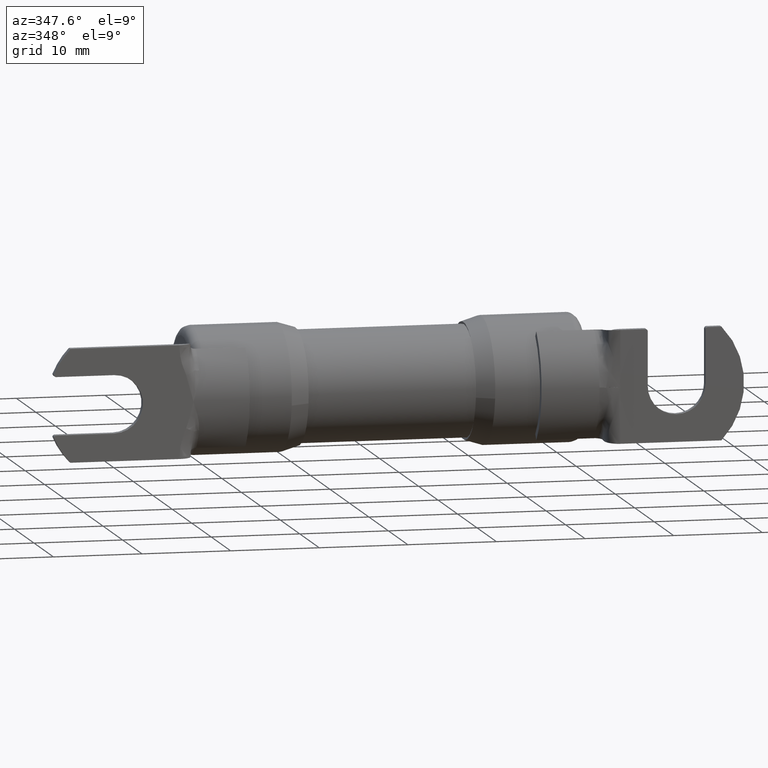
[diagram: clean part render]
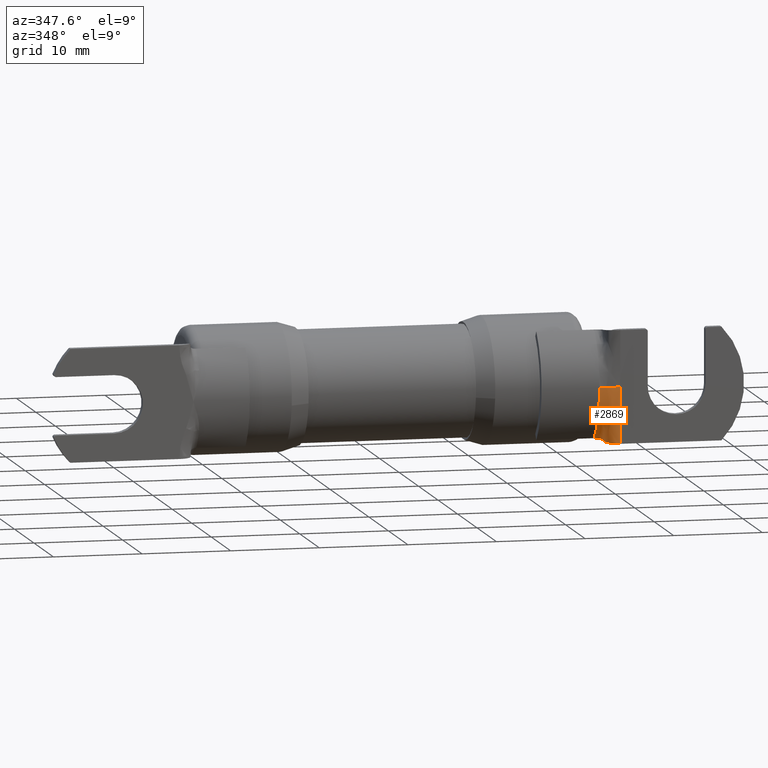
[diagram: same view with one face highlighted and labeled with its STEP entity id]
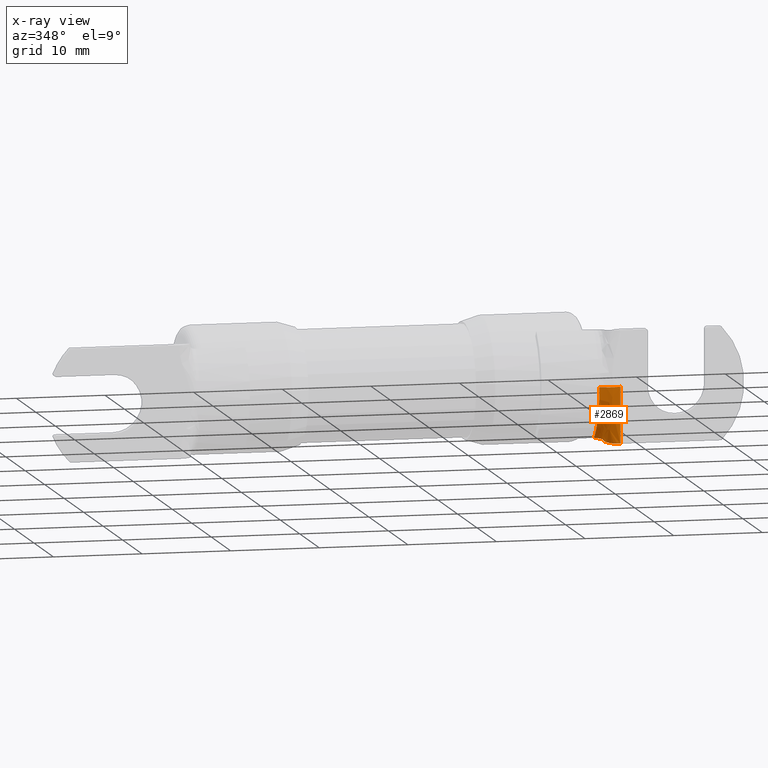
[diagram: x-ray of the same camera — body ghosted, the highlighted face saturated]
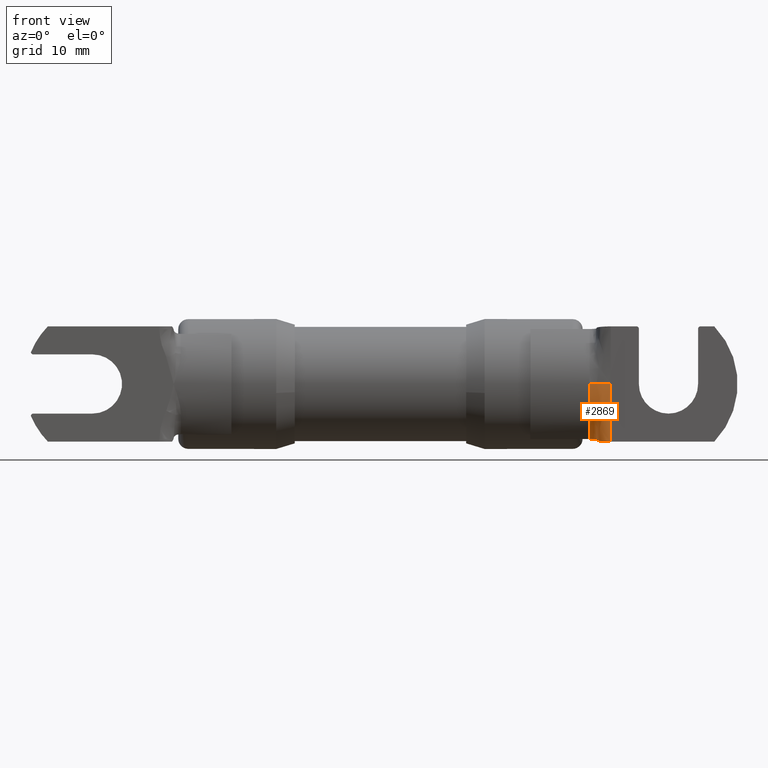
[diagram: same view with one face highlighted and labeled with its STEP entity id]
A machine part, auxiliary view. The second image highlights one B-rep face of the part: STEP entity #2869.
The next image is the same camera in x-ray: the body ghosted, the highlighted face saturated — about 0% of this face is hidden behind the body in this view.
A second angle (front view) of the same face is appended — the face is thin or edge-on in the first view.
In plain terms, the highlighted face is a freeform B-spline surface patch.
Its self-contained STEP definition (entity closure, byte-faithful):
#7 = CARTESIAN_POINT ( 'NONE',  ( 0.9172174191870646800, -0.3175282735970209000, 0.0001232263123424863100 ) ) ;
#21 = CARTESIAN_POINT ( 'NONE',  ( 0.9999999999999993300, -0.3187000000000004300, -0.06266666666666714800 ) ) ;
#143 = CARTESIAN_POINT ( 'NONE',  ( 0.9069999999999989200, -0.3186999999999992100, -0.04496244496935689100 ) ) ;
#154 = CARTESIAN_POINT ( 'NONE',  ( 0.9219994977633018100, -0.2561526967413070300, -0.1892375983644107000 ) ) ;
#242 = B_SPLINE_CURVE_WITH_KNOTS ( 'NONE', 3,
 ( #4996, #1693, #1263, #5308 ),
 .UNSPECIFIED., .F., .F.,
 ( 4, 4 ),
 ( 0.3325621450292392000, 0.3351660511316407200 ),
 .UNSPECIFIED. ) ;
#244 = EDGE_CURVE ( 'NONE', #600, #4332, #4473, .T. ) ;
#260 = CARTESIAN_POINT ( 'NONE',  ( 0.9929296308347413900, -0.3195108249331927700, -8.527158406571856400E-005 ) ) ;
#269 = CARTESIAN_POINT ( 'NONE',  ( 0.9069999999999999200, -0.3186996071294472300, 0.0005000000010222032700 ) ) ;
#303 = B_SPLINE_CURVE_WITH_KNOTS ( 'NONE', 3,
 ( #1023, #2527, #3415, #2507, #3170, #925, #520, #2322, #1487, #3724 ),
 .UNSPECIFIED., .F., .F.,
 ( 4, 1, 1, 1, 1, 2, 4 ),
 ( 0.0000000000000000000, 0.2109819828350518200, 0.3164729742525777500, 0.3650122903706611300, 0.6117488781960334100, 0.6951090799987604800, 1.000000000000000000 ),
 .UNSPECIFIED. ) ;
#318 = CARTESIAN_POINT ( 'NONE',  ( 0.9230621818913536900, -0.2271162442251738700, -0.2232778174709922600 ) ) ;
#355 = CARTESIAN_POINT ( 'NONE',  ( 0.9177487612510911700, -0.3167152845879476800, -0.02210502134608296300 ) ) ;
#375 = CARTESIAN_POINT ( 'NONE',  ( 0.9999999999999990000, -0.3187000000000009800, -0.1250000000000005800 ) ) ;
#396 = CARTESIAN_POINT ( 'NONE',  ( 0.9896204722016034300, -0.3203421691401724900, -0.1883236638979441400 ) ) ;
#450 = ORIENTED_EDGE ( 'NONE', *, *, #1025, .F. ) ;
#477 = CARTESIAN_POINT ( 'NONE',  ( 0.9999999999999992200, -0.3187000000000007600, -0.0005000000000005539300 ) ) ;
#520 = CARTESIAN_POINT ( 'NONE',  ( 0.9379333398869584800, -0.2469507755815275000, -0.2424543883998215000 ) ) ;
#600 = VERTEX_POINT ( 'NONE', #4408 ) ;
#618 = CARTESIAN_POINT ( 'NONE',  ( 0.9380679863516823100, -0.3187099624039591000, -0.0003335610429723995200 ) ) ;
#705 = CARTESIAN_POINT ( 'NONE',  ( 0.9999999999999992200, -0.3187000000000007600, -0.0005000000000005539300 ) ) ;
#760 = CARTESIAN_POINT ( 'NONE',  ( 0.9069999999999999200, -0.2280144494113630100, -0.2237956796171918500 ) ) ;
#797 = CARTESIAN_POINT ( 'NONE',  ( 0.9726987992572137000, -0.3158992790590513500, -0.2296045998632494100 ) ) ;
#816 = CARTESIAN_POINT ( 'NONE',  ( 0.9999999999999993300, -0.3187000000000004300, -0.06250000000000048600 ) ) ;
#831 = B_SPLINE_SURFACE_WITH_KNOTS ( 'NONE', 3, 3, ( 
 ( #3545, #4037, #1365, #4469, #1810, #4907, #2261, #5347, #7, #2213 ),
 ( #1252, #4367, #1695, #2156, #5224, #2609, #5676, #3051, #355, #3488 ),
 ( #816, #3943, #1269, #4385, #1717, #4819, #2175, #5243, #5696, #3074 ),
 ( #375, #3505, #834, #3964, #4402, #1731, #4833, #5265, #2648, #5711 ),
 ( #3090, #396, #3519, #3985, #1309, #3318, #5509, #1074, #154, #1506 ),
 ( #1747, #4853, #797, #3417, #2296, #1171, #5659, #3467, #318, #760 ),
 ( #3432, #2992, #2101, #4742, #1638, #4316, #4295, #1618, #4725, #2078 ) ),
 .UNSPECIFIED., .F., .F., .F.,
 ( 4, 1, 1, 1, 4 ),
 ( 4, 1, 1, 1, 1, 2, 4 ),
 ( 0.1072263801249413900, 0.3304197850937060100, 0.5536131900624707800, 0.7768065950312352800, 1.000000000000000000 ),
 ( 0.0000000000000000000, 0.2109819828350518200, 0.3164729742525777500, 0.3650122903706611300, 0.6117488781960334100, 0.6951090799987604800, 1.000000000000000000 ),
 .UNSPECIFIED. ) ;
#834 = CARTESIAN_POINT ( 'NONE',  ( 0.9770995188731386200, -0.3219997900588439400, -0.1270358214549841800 ) ) ;
#858 = CARTESIAN_POINT ( 'NONE',  ( 0.9272249501088322100, -0.3179393548543308400, -0.0005000000000005429800 ) ) ;
#925 = CARTESIAN_POINT ( 'NONE',  ( 0.9369626189624346000, -0.2648803788058666200, -0.2443399812152522700 ) ) ;
#1023 = CARTESIAN_POINT ( 'NONE',  ( 0.9999999999999992200, -0.3187000000000005900, -0.2500000000000005600 ) ) ;
#1025 = EDGE_CURVE ( 'NONE', #5738, #4568, #1042, .T. ) ;
#1042 = B_SPLINE_CURVE_WITH_KNOTS ( 'NONE', 3,
 ( #3835, #1543, #2000, #5144, #143, #2039 ),
 .UNSPECIFIED., .F., .F.,
 ( 4, 2, 4 ),
 ( 0.0000000000000000000, 0.2500000000000000600, 0.5000000000000000000 ),
 .UNSPECIFIED. ) ;
#1074 = CARTESIAN_POINT ( 'NONE',  ( 0.9354784500366586400, -0.2652463165944253200, -0.1892532331583446900 ) ) ;
#1171 = CARTESIAN_POINT ( 'NONE',  ( 0.9377965739282163600, -0.2738097510653664200, -0.2267674394250580600 ) ) ;
#1243 = FACE_OUTER_BOUND ( 'NONE', #1947, .T. ) ;
#1252 = CARTESIAN_POINT ( 'NONE',  ( 0.9999999999999992200, -0.3187000000000007600, -0.02083333333333387700 ) ) ;
#1263 = CARTESIAN_POINT ( 'NONE',  ( 0.9380684330196179500, -0.3187099943338371200, -0.0005000000000005463400 ) ) ;
#1269 = CARTESIAN_POINT ( 'NONE',  ( 0.9797399506426937000, -0.3225526470850581000, -0.06386251194761451100 ) ) ;
#1309 = CARTESIAN_POINT ( 'NONE',  ( 0.9464596582702880000, -0.3024636667454193000, -0.1897826207613647900 ) ) ;
#1319 = CARTESIAN_POINT ( 'NONE',  ( 0.9371636754740838600, -0.3186453194633109300, -0.0005000000000005460100 ) ) ;
#1326 = CARTESIAN_POINT ( 'NONE',  ( 0.9999999999999992200, -0.3187000000000005900, -0.2500000000000005600 ) ) ;
#1365 = CARTESIAN_POINT ( 'NONE',  ( 0.9823803824122486800, -0.3202226040451420200, -0.0001601268702017824200 ) ) ;
#1412 = CARTESIAN_POINT ( 'NONE',  ( 0.9379251353285791300, -0.3186996127903598500, -0.0005000000000005462300 ) ) ;
#1435 = CARTESIAN_POINT ( 'NONE',  ( 0.9580531613709004600, -0.3200394132116808300, -0.0001408613396094962800 ) ) ;
#1458 = CARTESIAN_POINT ( 'NONE',  ( 0.9379380000519901300, -0.3187006705329263300, 1.000436987696159300E-005 ) ) ;
#1487 = CARTESIAN_POINT ( 'NONE',  ( 0.9235935239553801900, -0.2111770093663555800, -0.2386921882154557900 ) ) ;
#1506 = CARTESIAN_POINT ( 'NONE',  ( 0.9069999999999999200, -0.2585258020331269200, -0.1904278784074805200 ) ) ;
#1541 = EDGE_CURVE ( 'NONE', #2265, #5738, #303, .T. ) ;
#1543 = CARTESIAN_POINT ( 'NONE',  ( 0.9069999999999994700, -0.2448518897468147400, -0.2088991707619635400 ) ) ;
#1562 = EDGE_CURVE ( 'NONE', #1878, #600, #242, .T. ) ;
#1618 = CARTESIAN_POINT ( 'NONE',  ( 0.9382296166792673000, -0.2259383736728435600, -0.2402445885744602100 ) ) ;
#1638 = CARTESIAN_POINT ( 'NONE',  ( 0.9425951572367505800, -0.2848406514159664300, -0.2464391323318002900 ) ) ;
#1693 = CARTESIAN_POINT ( 'NONE',  ( 0.9379967791974108700, -0.3187048722439427800, -0.0005000000000005462300 ) ) ;
#1695 = CARTESIAN_POINT ( 'NONE',  ( 0.9815002384890636500, -0.3212790455068367200, -0.02139429147370240000 ) ) ;
#1717 = CARTESIAN_POINT ( 'NONE',  ( 0.9541886603373629400, -0.3207696410298925300, -0.06506490611176866900 ) ) ;
#1731 = CARTESIAN_POINT ( 'NONE',  ( 0.9419663487571250400, -0.3076196423241316400, -0.1291876771961703300 ) ) ;
#1747 = CARTESIAN_POINT ( 'NONE',  ( 0.9999999999999992200, -0.3187000000000005900, -0.2291666666666671800 ) ) ;
#1769 = EDGE_CURVE ( 'NONE', #5465, #5316, #4326, .T. ) ;
#1810 = CARTESIAN_POINT ( 'NONE',  ( 0.9580531613709004600, -0.3200394132116808300, -0.0001408613396094962800 ) ) ;
#1871 = B_SPLINE_CURVE_WITH_KNOTS ( 'NONE', 3,
 ( #1326, #4484, #5359, #2738, #21, #3187, #477 ),
 .UNSPECIFIED., .F., .F.,
 ( 4, 1, 1, 1, 4 ),
 ( 0.0000000000000000000, 0.2500000000000000600, 0.4999999999999998900, 0.7499999999999998900, 0.9980000000000000000 ),
 .UNSPECIFIED. ) ;
#1878 = VERTEX_POINT ( 'NONE', #1412 ) ;
#1947 = EDGE_LOOP ( 'NONE', ( #4920, #2774, #450, #4727, #4575, #2289, #5127, #2042 ) ) ;
#2000 = CARTESIAN_POINT ( 'NONE',  ( 0.9069999999999994700, -0.2721116394795065600, -0.1718911490373987700 ) ) ;
#2013 = CARTESIAN_POINT ( 'NONE',  ( 0.9999999999999992200, -0.3187000000000007600, -5.533951594125567400E-016 ) ) ;
#2021 = EDGE_CURVE ( 'NONE', #5316, #4332, #3322, .T. ) ;
#2039 = CARTESIAN_POINT ( 'NONE',  ( 0.9069999999999999200, -0.3186996071294472300, 0.0005000000010222032700 ) ) ;
#2042 = ORIENTED_EDGE ( 'NONE', *, *, #244, .F. ) ;
#2065 = CARTESIAN_POINT ( 'NONE',  ( 0.9379380000519901300, -0.3187006705329263300, 1.000436987696159300E-005 ) ) ;
#2078 = CARTESIAN_POINT ( 'NONE',  ( 0.9069999999999999200, -0.2111770093663552200, -0.2386921882154560400 ) ) ;
#2101 = CARTESIAN_POINT ( 'NONE',  ( 0.9718186553340285600, -0.3139953901152777700, -0.2495052328550143600 ) ) ;
#2139 = B_SPLINE_CURVE_WITH_KNOTS ( 'NONE', 3,
 ( #4409, #4828, #858, #3989, #1319, #4428 ),
 .UNSPECIFIED., .F., .F.,
 ( 4, 2, 4 ),
 ( 0.0000000000000000000, 0.3048909199964163200, 0.3325621450292392000 ),
 .UNSPECIFIED. ) ;
#2156 = CARTESIAN_POINT ( 'NONE',  ( 0.9694308006597565100, -0.3213900961529666000, -0.02160647018405541600 ) ) ;
#2175 = CARTESIAN_POINT ( 'NONE',  ( 0.9379390218159990900, -0.3155144889602062300, -0.06579860667654741100 ) ) ;
#2213 = CARTESIAN_POINT ( 'NONE',  ( 0.9069999999999999200, -0.3187000000000007000, -5.945770472514089500E-016 ) ) ;
#2261 = CARTESIAN_POINT ( 'NONE',  ( 0.9379390218159989700, -0.3187000000000007000, -5.808767534205454300E-016 ) ) ;
#2265 = VERTEX_POINT ( 'NONE', #3764 ) ;
#2289 = ORIENTED_EDGE ( 'NONE', *, *, #1769, .T. ) ;
#2296 = CARTESIAN_POINT ( 'NONE',  ( 0.9438833242479296400, -0.2911695656073051100, -0.2280672987793276900 ) ) ;
#2322 = CARTESIAN_POINT ( 'NONE',  ( 0.9382296166792673000, -0.2259383736728435600, -0.2402445885744602100 ) ) ;
#2507 = CARTESIAN_POINT ( 'NONE',  ( 0.9563515318694936200, -0.3015244167063773100, -0.2481937047878833300 ) ) ;
#2527 = CARTESIAN_POINT ( 'NONE',  ( 0.9885174193238907000, -0.3187000000000008700, -0.2500000000000006700 ) ) ;
#2609 = CARTESIAN_POINT ( 'NONE',  ( 0.9461361235860337200, -0.3198082480841607500, -0.02186823602953109600 ) ) ;
#2639 = CARTESIAN_POINT ( 'NONE',  ( 0.9706198250952349200, -0.3202881655726779700, -0.0001670217436545763400 ) ) ;
#2648 = CARTESIAN_POINT ( 'NONE',  ( 0.9204054715712227700, -0.2893428712406255800, -0.1305417586211440300 ) ) ;
#2738 = CARTESIAN_POINT ( 'NONE',  ( 0.9999999999999990000, -0.3187000000000009800, -0.1250000000000005800 ) ) ;
#2774 = ORIENTED_EDGE ( 'NONE', *, *, #4684, .F. ) ;
#2806 = CARTESIAN_POINT ( 'NONE',  ( 0.9394588267933566800, -0.3188093838611166200, -1.150351293745549400E-005 ) ) ;
#2869 = ADVANCED_FACE ( 'NONE', ( #1243 ), #831, .F. ) ;
#2876 = CARTESIAN_POINT ( 'NONE',  ( 0.9379967069683725600, -0.3187048670809523000, -0.0001667685227552230100 ) ) ;
#2976 = CARTESIAN_POINT ( 'NONE',  ( 0.9823803824122486800, -0.3202226040451420200, -0.0001601268702017824200 ) ) ;
#2992 = CARTESIAN_POINT ( 'NONE',  ( 0.9885174193238907000, -0.3187000000000008700, -0.2500000000000006700 ) ) ;
#3051 = CARTESIAN_POINT ( 'NONE',  ( 0.9281420056563685100, -0.3174115898900342100, -0.02201077384638804000 ) ) ;
#3074 = CARTESIAN_POINT ( 'NONE',  ( 0.9069999999999999200, -0.3139264283391973700, -0.06744304843229143000 ) ) ;
#3090 = CARTESIAN_POINT ( 'NONE',  ( 0.9999999999999993300, -0.3187000000000007000, -0.1875000000000005300 ) ) ;
#3170 = CARTESIAN_POINT ( 'NONE',  ( 0.9425951572367505800, -0.2848406514159664300, -0.2464391323318002900 ) ) ;
#3187 = CARTESIAN_POINT ( 'NONE',  ( 0.9999999999999992200, -0.3187000000000007600, -0.02116666666666721200 ) ) ;
#3318 = CARTESIAN_POINT ( 'NONE',  ( 0.9394644838597798800, -0.2899054930994693400, -0.1896301641657736600 ) ) ;
#3322 = B_SPLINE_CURVE_WITH_KNOTS ( 'NONE', 3,
 ( #2013, #260, #2976, #2639, #1435, #5236, #2806, #2065 ),
 .UNSPECIFIED., .F., .F.,
 ( 4, 1, 1, 1, 1, 4 ),
 ( 0.0000000000000000000, 0.2109819828350517900, 0.3164729742525777500, 0.3650122903706611300, 0.6117488781960334100, 0.6674148622250756200 ),
 .UNSPECIFIED. ) ;
#3415 = CARTESIAN_POINT ( 'NONE',  ( 0.9718186553340285600, -0.3139953901152777700, -0.2495052328550143600 ) ) ;
#3417 = CARTESIAN_POINT ( 'NONE',  ( 0.9575405563049721500, -0.3054314407164927000, -0.2290106258647882900 ) ) ;
#3432 = CARTESIAN_POINT ( 'NONE',  ( 0.9999999999999992200, -0.3187000000000005900, -0.2500000000000005600 ) ) ;
#3467 = CARTESIAN_POINT ( 'NONE',  ( 0.9373125611317311100, -0.2398811902916229100, -0.2241968605097970900 ) ) ;
#3488 = CARTESIAN_POINT ( 'NONE',  ( 0.9069999999999999200, -0.3187000000000007000, -0.02248122229077899700 ) ) ;
#3505 = CARTESIAN_POINT ( 'NONE',  ( 0.9907235250793158300, -0.3210617296580506300, -0.1259238924289836900 ) ) ;
#3519 = CARTESIAN_POINT ( 'NONE',  ( 0.9744590871035837500, -0.3191508508649280000, -0.1891748213636291800 ) ) ;
#3545 = CARTESIAN_POINT ( 'NONE',  ( 0.9999999999999992200, -0.3187000000000007600, -5.533951594125567400E-016 ) ) ;
#3561 = CARTESIAN_POINT ( 'NONE',  ( 0.9999999999999992200, -0.3187000000000008700, -0.0003333333333338873500 ) ) ;
#3692 = CARTESIAN_POINT ( 'NONE',  ( 0.9381396832129027500, -0.3187150038054195100, -0.0005001767815942309200 ) ) ;
#3724 = CARTESIAN_POINT ( 'NONE',  ( 0.9069999999999999200, -0.2111770093663553300, -0.2386921882154559600 ) ) ;
#3764 = CARTESIAN_POINT ( 'NONE',  ( 0.9999999999999992200, -0.3187000000000005900, -0.2500000000000005600 ) ) ;
#3781 = CARTESIAN_POINT ( 'NONE',  ( 0.9999999999999992200, -0.3187000000000007600, -5.533951594125567400E-016 ) ) ;
#3835 = CARTESIAN_POINT ( 'NONE',  ( 0.9069999999999999200, -0.2111770093663553300, -0.2386921882154559600 ) ) ;
#3907 = CARTESIAN_POINT ( 'NONE',  ( 0.9069999999999999200, -0.2111770093663553300, -0.2386921882154559600 ) ) ;
#3943 = CARTESIAN_POINT ( 'NONE',  ( 0.9918265779570287800, -0.3208628573088475000, -0.06311039712053327600 ) ) ;
#3964 = CARTESIAN_POINT ( 'NONE',  ( 0.9634856784823641100, -0.3191816376669935300, -0.1279081350618014000 ) ) ;
#3985 = CARTESIAN_POINT ( 'NONE',  ( 0.9599186051759290800, -0.3123043738527736500, -0.1895810088024303700 ) ) ;
#3987 = CARTESIAN_POINT ( 'NONE',  ( 0.9999999999999992200, -0.3187000000000007600, -5.533951594125567400E-016 ) ) ;
#3989 = CARTESIAN_POINT ( 'NONE',  ( 0.9364022440531053500, -0.3185908965165382700, -0.0005000000000005456900 ) ) ;
#4037 = CARTESIAN_POINT ( 'NONE',  ( 0.9929296308347413900, -0.3195108249331927700, -8.527158406571856400E-005 ) ) ;
#4148 = CARTESIAN_POINT ( 'NONE',  ( 0.9999999999999992200, -0.3187000000000007600, -0.0005000000000005539300 ) ) ;
#4216 = EDGE_CURVE ( 'NONE', #2265, #5465, #1871, .T. ) ;
#4295 = CARTESIAN_POINT ( 'NONE',  ( 0.9379390218159989700, -0.2469475056344833700, -0.2424540445110822700 ) ) ;
#4316 = CARTESIAN_POINT ( 'NONE',  ( 0.9369626189624346000, -0.2648803788058666200, -0.2443399812152522700 ) ) ;
#4326 = B_SPLINE_CURVE_WITH_KNOTS ( 'NONE', 3,
 ( #705, #3561, #5686, #3781 ),
 .UNSPECIFIED., .F., .F.,
 ( 4, 4 ),
 ( 0.9980000000000000000, 1.000000000000000000 ),
 .UNSPECIFIED. ) ;
#4332 = VERTEX_POINT ( 'NONE', #1458 ) ;
#4367 = CARTESIAN_POINT ( 'NONE',  ( 0.9925619465421705600, -0.3200734065711001200, -0.02109366126063345500 ) ) ;
#4385 = CARTESIAN_POINT ( 'NONE',  ( 0.9670527517887996800, -0.3221738718599896400, -0.06448518308569563300 ) ) ;
#4402 = CARTESIAN_POINT ( 'NONE',  ( 0.9503241593038254100, -0.3144314647204003400, -0.1286917432605709800 ) ) ;
#4408 = CARTESIAN_POINT ( 'NONE',  ( 0.9381396832129027500, -0.3187150038054195100, -0.0005001767815942309200 ) ) ;
#4409 = CARTESIAN_POINT ( 'NONE',  ( 0.9069999999999999200, -0.3186996071294472300, 0.0005000000010222032700 ) ) ;
#4428 = CARTESIAN_POINT ( 'NONE',  ( 0.9379251353285791300, -0.3186996127903598500, -0.0005000000000005462300 ) ) ;
#4469 = CARTESIAN_POINT ( 'NONE',  ( 0.9706198250952349200, -0.3202881655726779700, -0.0001670217436545763400 ) ) ;
#4473 = B_SPLINE_CURVE_WITH_KNOTS ( 'NONE', 3,
 ( #3692, #618, #2876, #5600 ),
 .UNSPECIFIED., .F., .F.,
 ( 4, 4 ),
 ( 0.005308791989715127800, 0.005322618974219270700 ),
 .UNSPECIFIED. ) ;
#4484 = CARTESIAN_POINT ( 'NONE',  ( 0.9999999999999992200, -0.3187000000000005900, -0.2291666666666671800 ) ) ;
#4568 = VERTEX_POINT ( 'NONE', #269 ) ;
#4575 = ORIENTED_EDGE ( 'NONE', *, *, #4216, .T. ) ;
#4684 = EDGE_CURVE ( 'NONE', #4568, #1878, #2139, .T. ) ;
#4725 = CARTESIAN_POINT ( 'NONE',  ( 0.9235935239553801900, -0.2111770093663555800, -0.2386921882154557900 ) ) ;
#4727 = ORIENTED_EDGE ( 'NONE', *, *, #1541, .F. ) ;
#4742 = CARTESIAN_POINT ( 'NONE',  ( 0.9563515318694936200, -0.3015244167063773100, -0.2481937047878833300 ) ) ;
#4819 = CARTESIAN_POINT ( 'NONE',  ( 0.9444682136544703100, -0.3180559161342990700, -0.06546674640368353700 ) ) ;
#4828 = CARTESIAN_POINT ( 'NONE',  ( 0.9172174191870646800, -0.3175282735970209000, -0.0005000000000005398300 ) ) ;
#4833 = CARTESIAN_POINT ( 'NONE',  ( 0.9379390218159989700, -0.3013868665055010100, -0.1295890952423300300 ) ) ;
#4853 = CARTESIAN_POINT ( 'NONE',  ( 0.9888851036164616500, -0.3193215505242808000, -0.2295250229681271800 ) ) ;
#4907 = CARTESIAN_POINT ( 'NONE',  ( 0.9469700785518154800, -0.3193542819859095400, -6.880851720305652900E-005 ) ) ;
#4920 = ORIENTED_EDGE ( 'NONE', *, *, #1562, .F. ) ;
#4996 = CARTESIAN_POINT ( 'NONE',  ( 0.9379251353285791300, -0.3186996127903598500, -0.0005000000000005462300 ) ) ;
#5127 = ORIENTED_EDGE ( 'NONE', *, *, #2021, .T. ) ;
#5144 = CARTESIAN_POINT ( 'NONE',  ( 0.9069999999999993600, -0.3090454870965278500, -0.08990104761843340000 ) ) ;
#5224 = CARTESIAN_POINT ( 'NONE',  ( 0.9567649943597211800, -0.3209687498016343100, -0.02178229846230487300 ) ) ;
#5236 = CARTESIAN_POINT ( 'NONE',  ( 0.9477807178557209300, -0.3194043938824828200, -7.407860773232640900E-005 ) ) ;
#5243 = CARTESIAN_POINT ( 'NONE',  ( 0.9299761167514409800, -0.3125527674042070700, -0.06619181751099208200 ) ) ;
#5265 = CARTESIAN_POINT ( 'NONE',  ( 0.9327272833940497600, -0.2941020121063268600, -0.1300660672359348300 ) ) ;
#5308 = CARTESIAN_POINT ( 'NONE',  ( 0.9381396832129027500, -0.3187150038054195100, -0.0005001767815942309200 ) ) ;
#5316 = VERTEX_POINT ( 'NONE', #3987 ) ;
#5347 = CARTESIAN_POINT ( 'NONE',  ( 0.9272249501088322100, -0.3179393548543308400, 7.999435368479540700E-005 ) ) ;
#5359 = CARTESIAN_POINT ( 'NONE',  ( 0.9999999999999993300, -0.3187000000000007000, -0.1875000000000005300 ) ) ;
#5465 = VERTEX_POINT ( 'NONE', #4148 ) ;
#5509 = CARTESIAN_POINT ( 'NONE',  ( 0.9379390218159990900, -0.2785444130401957300, -0.1894538386878716300 ) ) ;
#5600 = CARTESIAN_POINT ( 'NONE',  ( 0.9379380000519901300, -0.3187006705329263300, 1.000436987696159300E-005 ) ) ;
#5659 = CARTESIAN_POINT ( 'NONE',  ( 0.9379390218159989700, -0.2581835056270386200, -0.2255824869881291300 ) ) ;
#5676 = CARTESIAN_POINT ( 'NONE',  ( 0.9379390218159989700, -0.3187000000000007000, -0.02193300645846995800 ) ) ;
#5686 = CARTESIAN_POINT ( 'NONE',  ( 0.9999999999999992200, -0.3187000000000008200, -0.0001666666666672204200 ) ) ;
#5696 = CARTESIAN_POINT ( 'NONE',  ( 0.9188114453791437200, -0.3108008744607826400, -0.06656096107514086800 ) ) ;
#5711 = CARTESIAN_POINT ( 'NONE',  ( 0.9069999999999999200, -0.2927558163583129400, -0.1318768793213560300 ) ) ;
#5738 = VERTEX_POINT ( 'NONE', #3907 ) ;